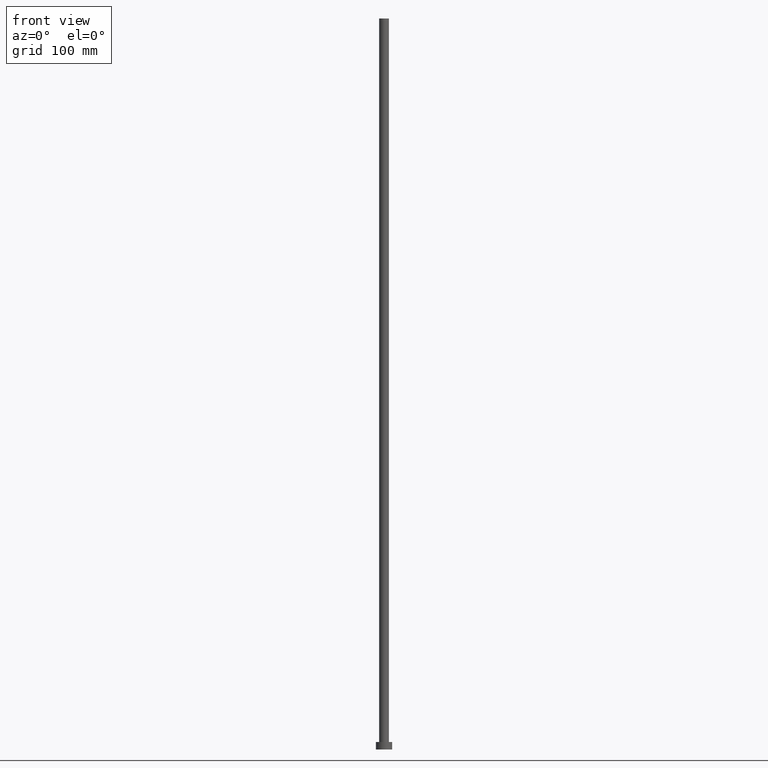
[diagram: clean part render]
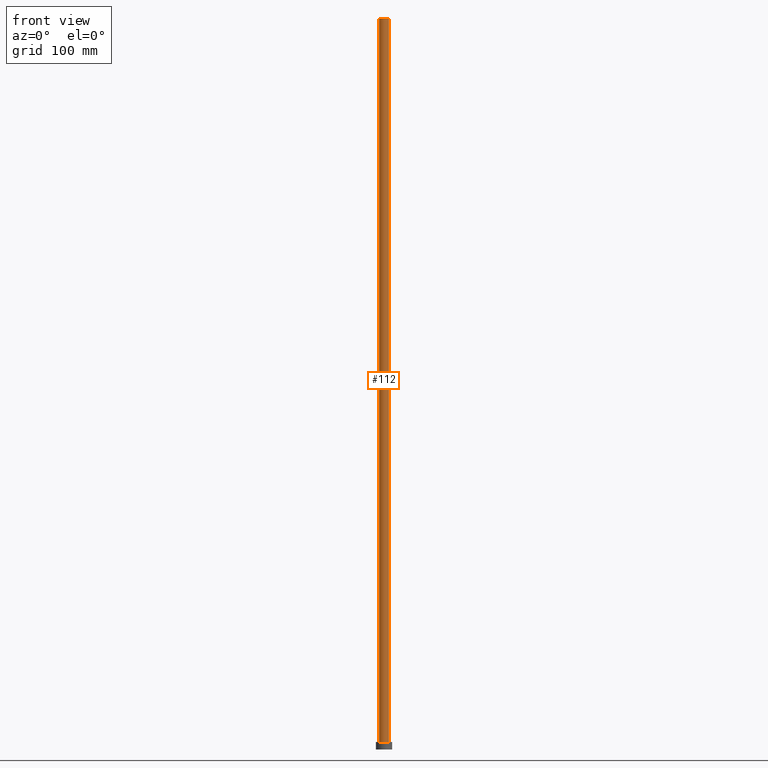
[diagram: same view with one face highlighted and labeled with its STEP entity id]
A machine part, front view. The second image highlights one B-rep face of the part: STEP entity #112.
In plain terms, the highlighted cylindrical surface (edge-blend (fillet) strip) has radius 4.25 mm, axis along (-0, -0, -1).
Its self-contained STEP definition (entity closure, byte-faithful):
#13 = DIRECTION ( 'NONE',  ( 0.000000000000000000, 0.000000000000000000, 1.000000000000000000 ) ) ;
#14 = CARTESIAN_POINT ( 'NONE',  ( 4.250000000000000000, 5.204748896376249713E-16, 630.0000000000000000 ) ) ;
#21 = ORIENTED_EDGE ( 'NONE', *, *, #229, .F. ) ;
#23 = DIRECTION ( 'NONE',  ( -0.000000000000000000, -0.000000000000000000, -1.000000000000000000 ) ) ;
#25 = DIRECTION ( 'NONE',  ( -1.000000000000000000, 0.000000000000000000, 0.000000000000000000 ) ) ;
#31 = CARTESIAN_POINT ( 'NONE',  ( -4.250000000000000000, 0.000000000000000000, 630.0000000000000000 ) ) ;
#38 = CYLINDRICAL_SURFACE ( 'NONE', #119, 4.250000000000000000 ) ;
#41 = ORIENTED_EDGE ( 'NONE', *, *, #196, .F. ) ;
#44 = CIRCLE ( 'NONE', #200, 4.250000000000000000 ) ;
#46 = CARTESIAN_POINT ( 'NONE',  ( 0.000000000000000000, 0.000000000000000000, 630.0000000000000000 ) ) ;
#68 = DIRECTION ( 'NONE',  ( 0.000000000000000000, 0.000000000000000000, 1.000000000000000000 ) ) ;
#71 = DIRECTION ( 'NONE',  ( -0.000000000000000000, -0.000000000000000000, -1.000000000000000000 ) ) ;
#80 = FACE_OUTER_BOUND ( 'NONE', #189, .T. ) ;
#87 = VECTOR ( 'NONE', #71, 1000.000000000000000 ) ;
#93 = EDGE_CURVE ( 'NONE', #223, #149, #44, .T. ) ;
#94 = LINE ( 'NONE', #156, #225 ) ;
#98 = VERTEX_POINT ( 'NONE', #222 ) ;
#101 = AXIS2_PLACEMENT_3D ( 'NONE', #46, #13, #134 ) ;
#103 = ORIENTED_EDGE ( 'NONE', *, *, #93, .T. ) ;
#105 = LINE ( 'NONE', #31, #87 ) ;
#109 = ORIENTED_EDGE ( 'NONE', *, *, #130, .T. ) ;
#112 = ADVANCED_FACE ( 'NONE', ( #80 ), #38, .T. ) ;
#119 = AXIS2_PLACEMENT_3D ( 'NONE', #147, #23, #25 ) ;
#130 = EDGE_CURVE ( 'NONE', #98, #223, #105, .T. ) ;
#134 = DIRECTION ( 'NONE',  ( 1.000000000000000000, 0.000000000000000000, 0.000000000000000000 ) ) ;
#147 = CARTESIAN_POINT ( 'NONE',  ( 0.000000000000000000, 0.000000000000000000, 630.0000000000000000 ) ) ;
#149 = VERTEX_POINT ( 'NONE', #217 ) ;
#151 = CIRCLE ( 'NONE', #101, 4.250000000000000000 ) ;
#156 = CARTESIAN_POINT ( 'NONE',  ( 4.250000000000000000, 5.204748896376249713E-16, 630.0000000000000000 ) ) ;
#171 = VERTEX_POINT ( 'NONE', #14 ) ;
#176 = DIRECTION ( 'NONE',  ( -0.000000000000000000, -0.000000000000000000, -1.000000000000000000 ) ) ;
#189 = EDGE_LOOP ( 'NONE', ( #41, #21, #109, #103 ) ) ;
#196 = EDGE_CURVE ( 'NONE', #171, #149, #94, .T. ) ;
#200 = AXIS2_PLACEMENT_3D ( 'NONE', #221, #68, #205 ) ;
#205 = DIRECTION ( 'NONE',  ( 1.000000000000000000, 0.000000000000000000, 0.000000000000000000 ) ) ;
#211 = CARTESIAN_POINT ( 'NONE',  ( -4.250000000000000000, 0.000000000000000000, 6.500000000000000000 ) ) ;
#217 = CARTESIAN_POINT ( 'NONE',  ( 4.250000000000000000, 5.204748896376249713E-16, 6.500000000000000000 ) ) ;
#221 = CARTESIAN_POINT ( 'NONE',  ( 0.000000000000000000, 0.000000000000000000, 6.500000000000000000 ) ) ;
#222 = CARTESIAN_POINT ( 'NONE',  ( -4.250000000000000000, 0.000000000000000000, 630.0000000000000000 ) ) ;
#223 = VERTEX_POINT ( 'NONE', #211 ) ;
#225 = VECTOR ( 'NONE', #176, 1000.000000000000000 ) ;
#229 = EDGE_CURVE ( 'NONE', #98, #171, #151, .T. ) ;